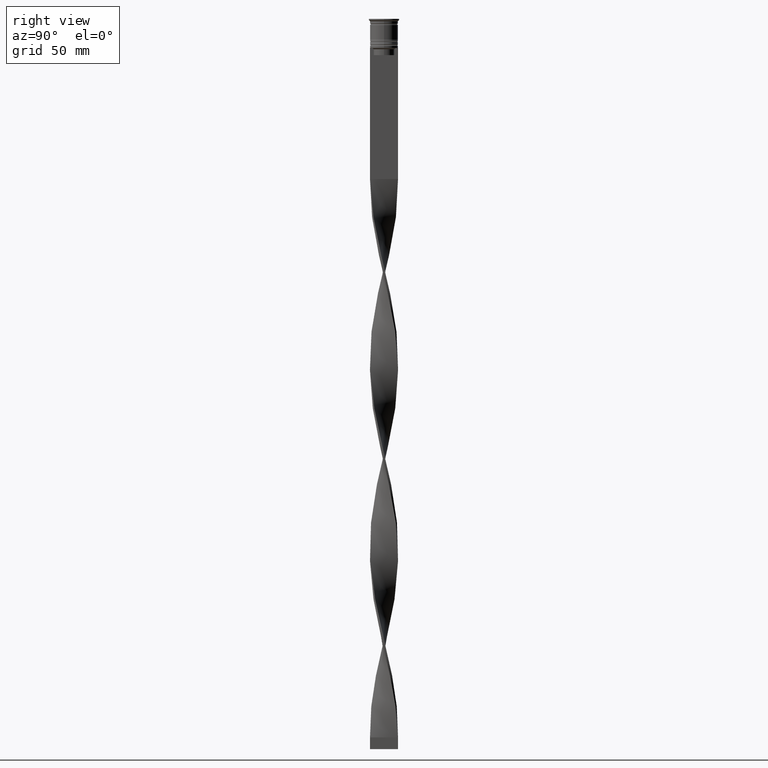
[diagram: clean part render]
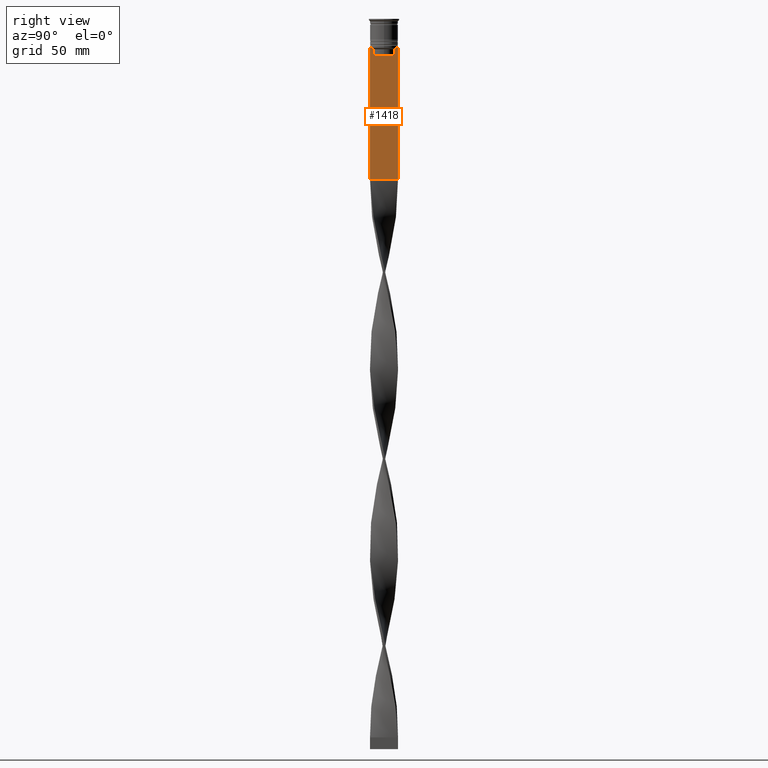
[diagram: same view with one face highlighted and labeled with its STEP entity id]
A machine part, right view. The second image highlights one B-rep face of the part: STEP entity #1418.
In plain terms, the highlighted planar face has unit normal (-1, 0, 0).
Its self-contained STEP definition (entity closure, byte-faithful):
#5 = DIRECTION ( 'NONE',  ( 0.000000000000000000, 0.000000000000000000, -1.000000000000000000 ) ) ;
#23 = EDGE_CURVE ( 'NONE', #1970, #1846, #1470, .T. ) ;
#31 = AXIS2_PLACEMENT_3D ( 'NONE', #3182, #1854, #340 ) ;
#63 = DIRECTION ( 'NONE',  ( 0.000000000000000000, -1.000000000000000000, 0.000000000000000000 ) ) ;
#102 = VECTOR ( 'NONE', #3727, 1000.000000000000000 ) ;
#214 = DIRECTION ( 'NONE',  ( 0.000000000000000000, 1.000000000000000000, 0.000000000000000000 ) ) ;
#303 = CARTESIAN_POINT ( 'NONE',  ( 0.5000000000000002220, 5.878775382679627626, -12.50000000000000000 ) ) ;
#320 = DIRECTION ( 'NONE',  ( 0.000000000000000000, -1.000000000000000000, 0.000000000000000000 ) ) ;
#340 = DIRECTION ( 'NONE',  ( 0.000000000000000000, 0.000000000000000000, 1.000000000000000000 ) ) ;
#358 = VERTEX_POINT ( 'NONE', #1732 ) ;
#363 = VECTOR ( 'NONE', #5, 1000.000000000000000 ) ;
#375 = CARTESIAN_POINT ( 'NONE',  ( 0.5000000000000002220, -6.000000000000000000, -12.50000000000000000 ) ) ;
#394 = ORIENTED_EDGE ( 'NONE', *, *, #2497, .T. ) ;
#536 = CARTESIAN_POINT ( 'NONE',  ( 0.5000000000000002220, -4.539195586926423331, -12.83338928448044314 ) ) ;
#555 = VERTEX_POINT ( 'NONE', #3544 ) ;
#651 = PLANE ( 'NONE',  #31 ) ;
#665 = CARTESIAN_POINT ( 'NONE',  ( 0.5000000000000002220, -5.999999999999999112, -68.50000000000000000 ) ) ;
#667 = ORIENTED_EDGE ( 'NONE', *, *, #1478, .T. ) ;
#738 = DIRECTION ( 'NONE',  ( 0.000000000000000000, 0.000000000000000000, -1.000000000000000000 ) ) ;
#753 = VERTEX_POINT ( 'NONE', #1999 ) ;
#785 = ORIENTED_EDGE ( 'NONE', *, *, #3538, .T. ) ;
#810 = CARTESIAN_POINT ( 'NONE',  ( 0.5000000000000002220, 4.874423042781576676, -12.50000000000000000 ) ) ;
#824 = VECTOR ( 'NONE', #320, 1000.000000000000000 ) ;
#829 = DIRECTION ( 'NONE',  ( 0.000000000000000000, -1.000000000000000000, 0.000000000000000000 ) ) ;
#852 = VERTEX_POINT ( 'NONE', #665 ) ;
#864 = CARTESIAN_POINT ( 'NONE',  ( 0.5000000000000002220, 6.000000000000000888, -68.50000000000000000 ) ) ;
#1026 = EDGE_CURVE ( 'NONE', #2616, #2271, #2987, .T. ) ;
#1052 = CARTESIAN_POINT ( 'NONE',  ( 0.5000000000000002220, 4.539195634199896467, -12.83338923751318816 ) ) ;
#1144 = VECTOR ( 'NONE', #3258, 1000.000000000000000 ) ;
#1171 = CARTESIAN_POINT ( 'NONE',  ( 0.5000000000000002220, -4.874423042781576676, -12.50000000000000000 ) ) ;
#1185 = LINE ( 'NONE', #1801, #2568 ) ;
#1214 = CARTESIAN_POINT ( 'NONE',  ( 0.5000000000000002220, 4.371498598878878816, -13.00000000000000178 ) ) ;
#1279 = FACE_OUTER_BOUND ( 'NONE', #1765, .T. ) ;
#1334 = CARTESIAN_POINT ( 'NONE',  ( 0.5000000000000002220, 4.371498598878878816, -13.00000000000000178 ) ) ;
#1418 = ADVANCED_FACE ( 'NONE', ( #1279 ), #651, .F. ) ;
#1470 = LINE ( 'NONE', #3957, #1144 ) ;
#1478 = EDGE_CURVE ( 'NONE', #3968, #2616, #1571, .T. ) ;
#1502 = ORIENTED_EDGE ( 'NONE', *, *, #1026, .T. ) ;
#1521 = LINE ( 'NONE', #2136, #102 ) ;
#1528 = CARTESIAN_POINT ( 'NONE',  ( 0.5000000000000002220, -4.371498598878878816, -13.00000000000000178 ) ) ;
#1571 = B_SPLINE_CURVE_WITH_KNOTS ( 'NONE', 3,
 ( #2313, #2968, #1052, #1334 ),
 .UNSPECIFIED., .F., .F.,
 ( 4, 4 ),
 ( 0.008336552452178421987, 0.009045730124312839626 ),
 .UNSPECIFIED. ) ;
#1586 = VERTEX_POINT ( 'NONE', #3586 ) ;
#1602 = ORIENTED_EDGE ( 'NONE', *, *, #2523, .T. ) ;
#1605 = EDGE_CURVE ( 'NONE', #358, #2409, #3216, .T. ) ;
#1622 = VECTOR ( 'NONE', #738, 1000.000000000000000 ) ;
#1625 = VECTOR ( 'NONE', #829, 1000.000000000000000 ) ;
#1710 = ORIENTED_EDGE ( 'NONE', *, *, #1892, .T. ) ;
#1732 = CARTESIAN_POINT ( 'NONE',  ( 0.5000000000000002220, 6.000000000000000888, -12.50000000000000000 ) ) ;
#1751 = EDGE_CURVE ( 'NONE', #2271, #1970, #2421, .T. ) ;
#1761 = ORIENTED_EDGE ( 'NONE', *, *, #1605, .T. ) ;
#1765 = EDGE_LOOP ( 'NONE', ( #2308, #667, #1502, #3332, #1990, #394, #1710, #1602, #2034, #785, #2569, #1761 ) ) ;
#1801 = CARTESIAN_POINT ( 'NONE',  ( 0.5000000000000002220, -6.000000000000000000, -68.50000000000000000 ) ) ;
#1806 = CARTESIAN_POINT ( 'NONE',  ( 0.5000000000000002220, -4.371498598878878816, -13.00000000000000178 ) ) ;
#1841 = LINE ( 'NONE', #4078, #824 ) ;
#1846 = VERTEX_POINT ( 'NONE', #1528 ) ;
#1854 = DIRECTION ( 'NONE',  ( -1.000000000000000000, 0.000000000000000000, 0.000000000000000000 ) ) ;
#1892 = EDGE_CURVE ( 'NONE', #753, #1586, #1841, .T. ) ;
#1924 = LINE ( 'NONE', #2145, #363 ) ;
#1937 = CARTESIAN_POINT ( 'NONE',  ( 0.5000000000000002220, -6.000000000000000000, -0.4584054212077061097 ) ) ;
#1954 = EDGE_CURVE ( 'NONE', #2409, #3968, #2228, .T. ) ;
#1970 = VERTEX_POINT ( 'NONE', #4057 ) ;
#1979 = EDGE_CURVE ( 'NONE', #358, #2592, #1924, .T. ) ;
#1990 = ORIENTED_EDGE ( 'NONE', *, *, #23, .T. ) ;
#1999 = CARTESIAN_POINT ( 'NONE',  ( 0.5000000000000002220, -4.874423042781576676, -12.50000000000000000 ) ) ;
#2034 = ORIENTED_EDGE ( 'NONE', *, *, #2714, .T. ) ;
#2108 = CARTESIAN_POINT ( 'NONE',  ( 0.5000000000000002220, 4.371498598878878816, 0.000000000000000000 ) ) ;
#2136 = CARTESIAN_POINT ( 'NONE',  ( 0.5000000000000002220, -6.000000000000000000, -12.50000000000000000 ) ) ;
#2145 = CARTESIAN_POINT ( 'NONE',  ( 0.5000000000000002220, 6.000000000000000888, -0.4584054212077061097 ) ) ;
#2225 = VECTOR ( 'NONE', #63, 1000.000000000000000 ) ;
#2228 = LINE ( 'NONE', #2525, #3415 ) ;
#2246 = LINE ( 'NONE', #1937, #2361 ) ;
#2271 = VERTEX_POINT ( 'NONE', #2965 ) ;
#2308 = ORIENTED_EDGE ( 'NONE', *, *, #1954, .T. ) ;
#2313 = CARTESIAN_POINT ( 'NONE',  ( 0.5000000000000002220, 4.874423042781576676, -12.50000000000000000 ) ) ;
#2361 = VECTOR ( 'NONE', #2636, 1000.000000000000000 ) ;
#2409 = VERTEX_POINT ( 'NONE', #303 ) ;
#2421 = LINE ( 'NONE', #3302, #1625 ) ;
#2497 = EDGE_CURVE ( 'NONE', #1846, #753, #3997, .T. ) ;
#2523 = EDGE_CURVE ( 'NONE', #1586, #555, #1521, .T. ) ;
#2525 = CARTESIAN_POINT ( 'NONE',  ( 0.5000000000000002220, -6.000000000000000000, -12.50000000000000000 ) ) ;
#2568 = VECTOR ( 'NONE', #214, 1000.000000000000000 ) ;
#2569 = ORIENTED_EDGE ( 'NONE', *, *, #1979, .F. ) ;
#2592 = VERTEX_POINT ( 'NONE', #864 ) ;
#2616 = VERTEX_POINT ( 'NONE', #1214 ) ;
#2636 = DIRECTION ( 'NONE',  ( 0.000000000000000000, 0.000000000000000000, -1.000000000000000000 ) ) ;
#2714 = EDGE_CURVE ( 'NONE', #555, #852, #2246, .T. ) ;
#2965 = CARTESIAN_POINT ( 'NONE',  ( 0.5000000000000002220, 4.371498598878878816, -15.50000000000000000 ) ) ;
#2968 = CARTESIAN_POINT ( 'NONE',  ( 0.5000000000000002220, 4.706831415367288329, -12.66671683478479160 ) ) ;
#2987 = LINE ( 'NONE', #2108, #1622 ) ;
#3065 = CARTESIAN_POINT ( 'NONE',  ( 0.5000000000000002220, -4.706831372970962768, -12.66671687695981774 ) ) ;
#3182 = CARTESIAN_POINT ( 'NONE',  ( 0.5000000000000002220, -6.000000000000000000, -0.4584054212077061097 ) ) ;
#3216 = LINE ( 'NONE', #375, #2225 ) ;
#3258 = DIRECTION ( 'NONE',  ( -0.000000000000000000, -0.000000000000000000, 1.000000000000000000 ) ) ;
#3302 = CARTESIAN_POINT ( 'NONE',  ( 0.5000000000000002220, 4.399999999999999467, -15.50000000000000000 ) ) ;
#3332 = ORIENTED_EDGE ( 'NONE', *, *, #1751, .T. ) ;
#3415 = VECTOR ( 'NONE', #3493, 1000.000000000000000 ) ;
#3493 = DIRECTION ( 'NONE',  ( 0.000000000000000000, -1.000000000000000000, 0.000000000000000000 ) ) ;
#3538 = EDGE_CURVE ( 'NONE', #852, #2592, #1185, .T. ) ;
#3544 = CARTESIAN_POINT ( 'NONE',  ( 0.5000000000000002220, -6.000000000000000000, -12.50000000000000000 ) ) ;
#3586 = CARTESIAN_POINT ( 'NONE',  ( 0.5000000000000002220, -5.878775382679627626, -12.50000000000000000 ) ) ;
#3727 = DIRECTION ( 'NONE',  ( 0.000000000000000000, -1.000000000000000000, 0.000000000000000000 ) ) ;
#3957 = CARTESIAN_POINT ( 'NONE',  ( 0.5000000000000002220, -4.371498598878878816, 0.000000000000000000 ) ) ;
#3968 = VERTEX_POINT ( 'NONE', #810 ) ;
#3997 = B_SPLINE_CURVE_WITH_KNOTS ( 'NONE', 3,
 ( #1806, #536, #3065, #1171 ),
 .UNSPECIFIED., .F., .F.,
 ( 4, 4 ),
 ( 0.02089901220910808308, 0.02161421017310286019 ),
 .UNSPECIFIED. ) ;
#4057 = CARTESIAN_POINT ( 'NONE',  ( 0.5000000000000002220, -4.371498598878878816, -15.50000000000000000 ) ) ;
#4078 = CARTESIAN_POINT ( 'NONE',  ( 0.5000000000000002220, -6.000000000000000000, -12.50000000000000000 ) ) ;